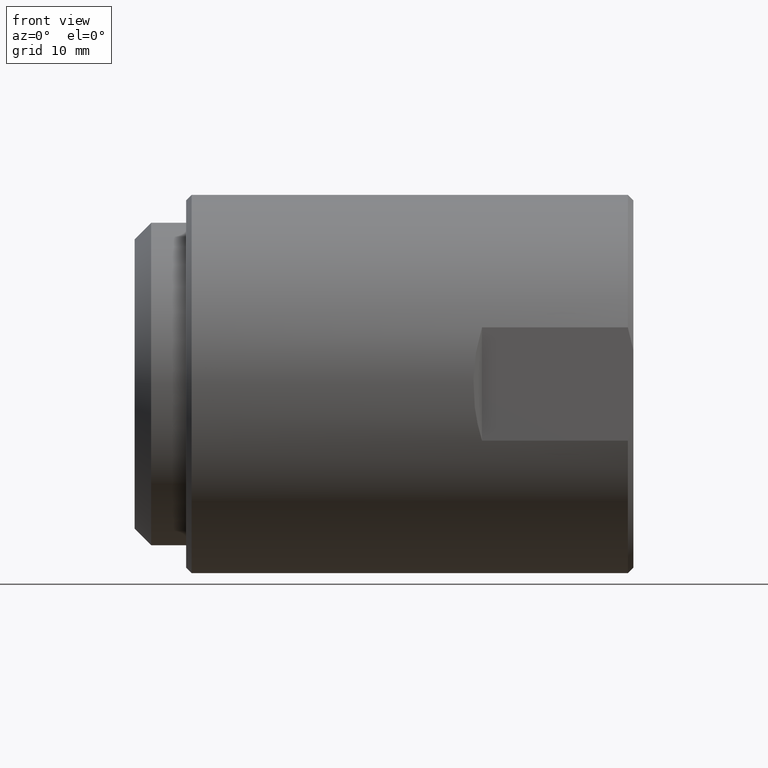
[diagram: clean part render]
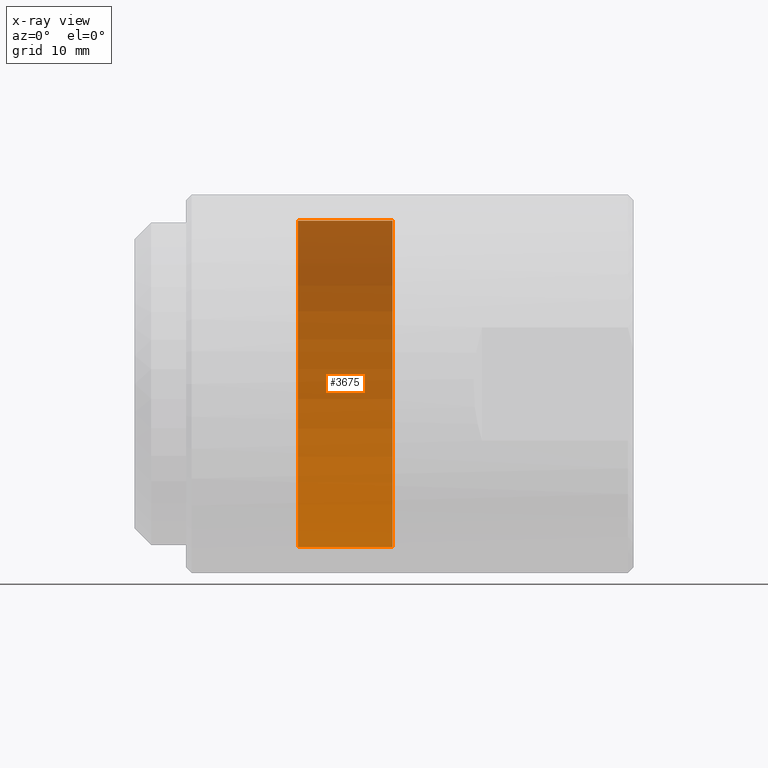
[diagram: x-ray — body ghosted, one internal face saturated and labeled with its STEP entity id]
A machine part, front view, then the same camera in x-ray: the body is ghosted and one INTERNAL B-rep face — a face not visible from any outside direction — is saturated and labeled: STEP entity #3675.
In plain terms, the highlighted cylindrical surface (partial cylindrical patch) has radius 15.0686 mm, axis along (-1, -0, -0).
Its self-contained STEP definition (entity closure, byte-faithful):
#37 = VECTOR ( 'NONE', #2869, 39.37007874015748143 ) ;
#240 = CARTESIAN_POINT ( 'NONE',  ( 0.1247499999999999859, 7.265217135941671914E-17, -0.5932499999999999440 ) ) ;
#778 = ORIENTED_EDGE ( 'NONE', *, *, #8562, .F. ) ;
#1636 = CIRCLE ( 'NONE', #11378, 0.5932500000000000551 ) ;
#2047 = CARTESIAN_POINT ( 'NONE',  ( 0.0000000000000000000, 7.265217135941673146E-17, -0.5932500000000000551 ) ) ;
#2297 = VERTEX_POINT ( 'NONE', #240 ) ;
#2345 = CARTESIAN_POINT ( 'NONE',  ( 0.4687499999999999445, 0.0000000000000000000, 0.5932500000000000551 ) ) ;
#2449 = AXIS2_PLACEMENT_3D ( 'NONE', #9023, #6532, #12083 ) ;
#2714 = ORIENTED_EDGE ( 'NONE', *, *, #7042, .T. ) ;
#2837 = VERTEX_POINT ( 'NONE', #11761 ) ;
#2869 = DIRECTION ( 'NONE',  ( -1.000000000000000000, -0.0000000000000000000, -0.0000000000000000000 ) ) ;
#3629 = CARTESIAN_POINT ( 'NONE',  ( 0.4687499999999999445, 0.0000000000000000000, 0.0000000000000000000 ) ) ;
#3635 = CIRCLE ( 'NONE', #9210, 0.5932499999999999440 ) ;
#3675 = ADVANCED_FACE ( 'NONE', ( #6091 ), #5155, .F. ) ;
#3795 = LINE ( 'NONE', #7600, #37 ) ;
#3964 = VERTEX_POINT ( 'NONE', #2345 ) ;
#4028 = LINE ( 'NONE', #2047, #5899 ) ;
#4455 = CARTESIAN_POINT ( 'NONE',  ( 0.1247499999999999859, 0.0000000000000000000, 0.5932499999999999440 ) ) ;
#5115 = EDGE_CURVE ( 'NONE', #2837, #2297, #4028, .T. ) ;
#5155 = CYLINDRICAL_SURFACE ( 'NONE', #2449, 0.5932500000000000551 ) ;
#5899 = VECTOR ( 'NONE', #10516, 39.37007874015748143 ) ;
#6091 = FACE_OUTER_BOUND ( 'NONE', #9572, .T. ) ;
#6532 = DIRECTION ( 'NONE',  ( -1.000000000000000000, -0.0000000000000000000, -0.0000000000000000000 ) ) ;
#7042 = EDGE_CURVE ( 'NONE', #3964, #8009, #3795, .T. ) ;
#7600 = CARTESIAN_POINT ( 'NONE',  ( 0.0000000000000000000, 0.0000000000000000000, 0.5932500000000000551 ) ) ;
#8009 = VERTEX_POINT ( 'NONE', #4455 ) ;
#8503 = DIRECTION ( 'NONE',  ( -1.000000000000000000, -0.0000000000000000000, -0.0000000000000000000 ) ) ;
#8551 = DIRECTION ( 'NONE',  ( 0.0000000000000000000, 0.0000000000000000000, 1.000000000000000000 ) ) ;
#8562 = EDGE_CURVE ( 'NONE', #3964, #2837, #1636, .T. ) ;
#8901 = ORIENTED_EDGE ( 'NONE', *, *, #5115, .F. ) ;
#9023 = CARTESIAN_POINT ( 'NONE',  ( 0.0000000000000000000, 0.0000000000000000000, 0.0000000000000000000 ) ) ;
#9210 = AXIS2_PLACEMENT_3D ( 'NONE', #11223, #9233, #8551 ) ;
#9233 = DIRECTION ( 'NONE',  ( -1.000000000000000000, -0.0000000000000000000, -0.0000000000000000000 ) ) ;
#9364 = DIRECTION ( 'NONE',  ( 0.0000000000000000000, 0.0000000000000000000, 1.000000000000000000 ) ) ;
#9572 = EDGE_LOOP ( 'NONE', ( #8901, #778, #2714, #11486 ) ) ;
#10353 = EDGE_CURVE ( 'NONE', #8009, #2297, #3635, .T. ) ;
#10516 = DIRECTION ( 'NONE',  ( -1.000000000000000000, -0.0000000000000000000, -0.0000000000000000000 ) ) ;
#11223 = CARTESIAN_POINT ( 'NONE',  ( 0.1247499999999999859, 0.0000000000000000000, 0.0000000000000000000 ) ) ;
#11378 = AXIS2_PLACEMENT_3D ( 'NONE', #3629, #8503, #9364 ) ;
#11486 = ORIENTED_EDGE ( 'NONE', *, *, #10353, .T. ) ;
#11761 = CARTESIAN_POINT ( 'NONE',  ( 0.4687499999999999445, 7.265217135941673146E-17, -0.5932500000000000551 ) ) ;
#12083 = DIRECTION ( 'NONE',  ( 0.0000000000000000000, 0.0000000000000000000, 1.000000000000000000 ) ) ;